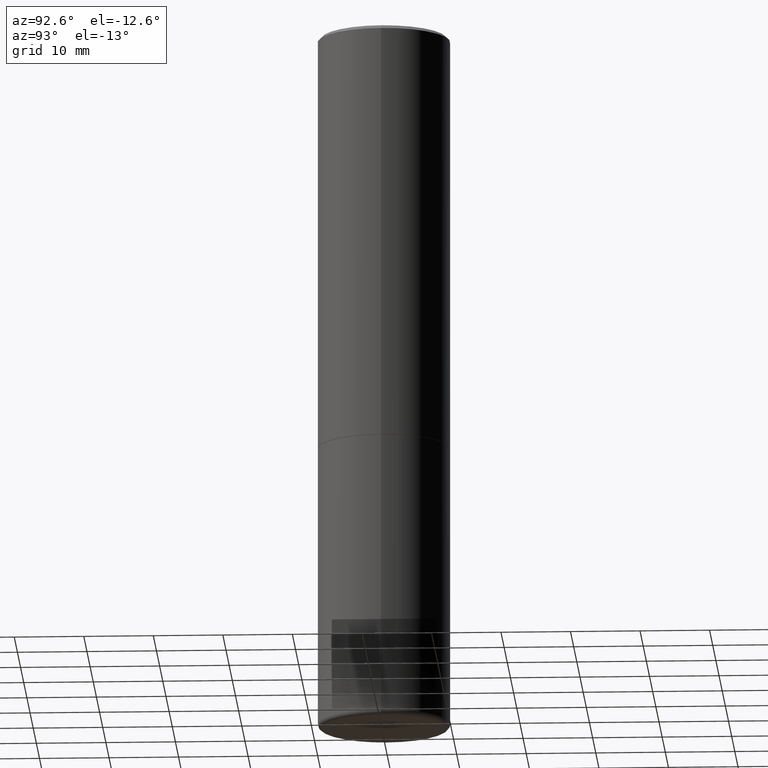
[diagram: clean part render]
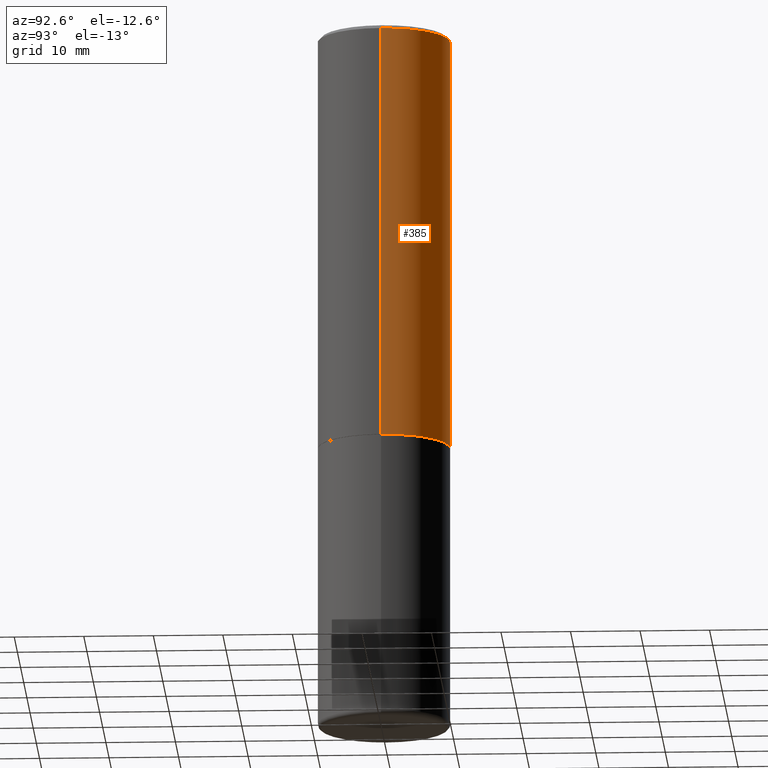
[diagram: same view with one face highlighted and labeled with its STEP entity id]
A machine part, auxiliary view. The second image highlights one B-rep face of the part: STEP entity #385.
In plain terms, the highlighted cylindrical surface (partial cylindrical patch) has radius 9.525 mm, axis along (-0, 0, 1).
Its self-contained STEP definition (entity closure, byte-faithful):
#1 = LINE ( 'NONE', #32, #402 ) ;
#8 = CARTESIAN_POINT ( 'NONE',  ( -0.3749999999999993339, 2.548781377355482380E-15, -0.02000000000000018777 ) ) ;
#25 = CARTESIAN_POINT ( 'NONE',  ( 0.3749999999999995559, -1.090738770254597397E-14, -2.373999999999999666 ) ) ;
#31 = LINE ( 'NONE', #121, #464 ) ;
#32 = CARTESIAN_POINT ( 'NONE',  ( -0.3749999999999993894, 2.664535259100371358E-15, -1.844600658845586515E-29 ) ) ;
#33 = EDGE_CURVE ( 'NONE', #211, #398, #271, .T. ) ;
#55 = DIRECTION ( 'NONE',  ( 1.000000000000000000, -6.982962677686265133E-15, 0.000000000000000000 ) ) ;
#89 = EDGE_CURVE ( 'NONE', #298, #211, #31, .T. ) ;
#111 = CIRCLE ( 'NONE', #436, 0.3749999999999995559 ) ;
#117 = DIRECTION ( 'NONE',  ( -2.445468806185136597E-29, 3.491481338843145583E-15, 1.000000000000000000 ) ) ;
#121 = CARTESIAN_POINT ( 'NONE',  ( 0.3749999999999993894, -2.618611004132345678E-15, 1.828566290923473120E-29 ) ) ;
#128 = DIRECTION ( 'NONE',  ( -2.445468806185136597E-29, 3.491481338843145583E-15, 1.000000000000000000 ) ) ;
#133 = EDGE_LOOP ( 'NONE', ( #172, #277, #373, #490 ) ) ;
#168 = CARTESIAN_POINT ( 'NONE',  ( 4.890937612370318701E-31, -6.982962677686356937E-17, -0.02000000000000018777 ) ) ;
#172 = ORIENTED_EDGE ( 'NONE', *, *, #346, .T. ) ;
#174 = VERTEX_POINT ( 'NONE', #342 ) ;
#182 = DIRECTION ( 'NONE',  ( -2.445468806185136877E-29, 3.491481338843145188E-15, 1.000000000000000000 ) ) ;
#186 = EDGE_CURVE ( 'NONE', #174, #398, #1, .T. ) ;
#211 = VERTEX_POINT ( 'NONE', #229 ) ;
#229 = CARTESIAN_POINT ( 'NONE',  ( 0.3749999999999993339, -2.642516375941183295E-15, -0.02000000000000018777 ) ) ;
#230 = DIRECTION ( 'NONE',  ( 1.000000000000000000, -6.982962677686266711E-15, 4.876176775795936353E-29 ) ) ;
#268 = DIRECTION ( 'NONE',  ( 1.000000000000000000, -6.982962677686267499E-15, 0.000000000000000000 ) ) ;
#271 = CIRCLE ( 'NONE', #414, 0.3749999999999993339 ) ;
#274 = DIRECTION ( 'NONE',  ( -2.445468806185136877E-29, 3.491481338843145188E-15, 1.000000000000000000 ) ) ;
#277 = ORIENTED_EDGE ( 'NONE', *, *, #186, .T. ) ;
#298 = VERTEX_POINT ( 'NONE', #25 ) ;
#317 = AXIS2_PLACEMENT_3D ( 'NONE', #353, #117, #230 ) ;
#342 = CARTESIAN_POINT ( 'NONE',  ( -0.3749999999999995559, -1.514767903494871085E-15, -2.373999999999999666 ) ) ;
#346 = EDGE_CURVE ( 'NONE', #298, #174, #111, .T. ) ;
#353 = CARTESIAN_POINT ( 'NONE',  ( 0.000000000000000000, 0.000000000000000000, 0.000000000000000000 ) ) ;
#365 = DIRECTION ( 'NONE',  ( -2.445468806185136597E-29, 3.491481338843145583E-15, 1.000000000000000000 ) ) ;
#373 = ORIENTED_EDGE ( 'NONE', *, *, #33, .F. ) ;
#385 = ADVANCED_FACE ( 'NONE', ( #395 ), #457, .T. ) ;
#395 = FACE_OUTER_BOUND ( 'NONE', #133, .T. ) ;
#398 = VERTEX_POINT ( 'NONE', #8 ) ;
#402 = VECTOR ( 'NONE', #182, 39.37007874015748143 ) ;
#404 = CARTESIAN_POINT ( 'NONE',  ( 5.805542945883513814E-29, -8.288776698413627111E-15, -2.373999999999999666 ) ) ;
#414 = AXIS2_PLACEMENT_3D ( 'NONE', #168, #365, #268 ) ;
#436 = AXIS2_PLACEMENT_3D ( 'NONE', #404, #128, #55 ) ;
#457 = CYLINDRICAL_SURFACE ( 'NONE', #317, 0.3749999999999993894 ) ;
#464 = VECTOR ( 'NONE', #274, 39.37007874015748143 ) ;
#490 = ORIENTED_EDGE ( 'NONE', *, *, #89, .F. ) ;